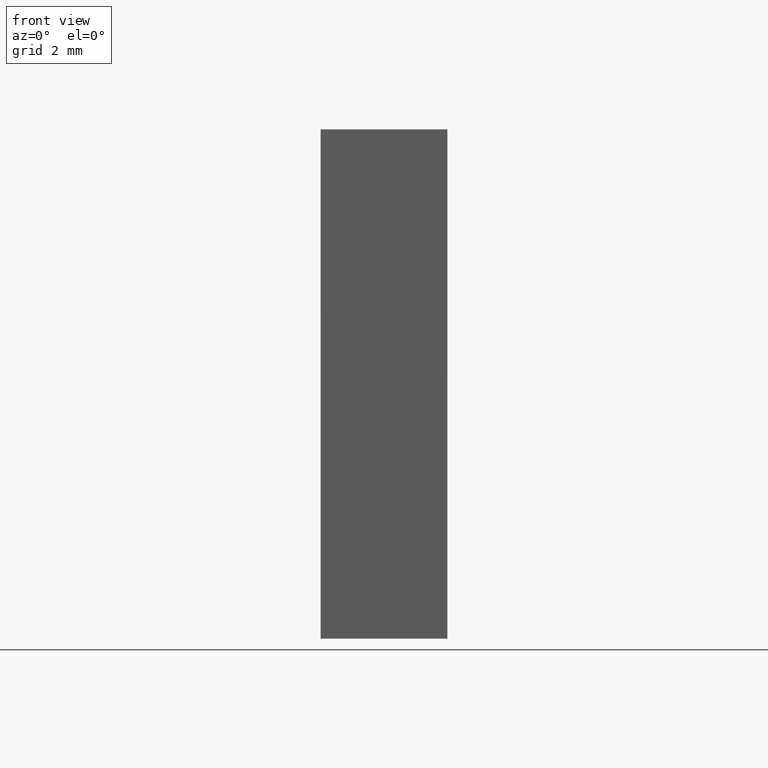
[diagram: clean part render]
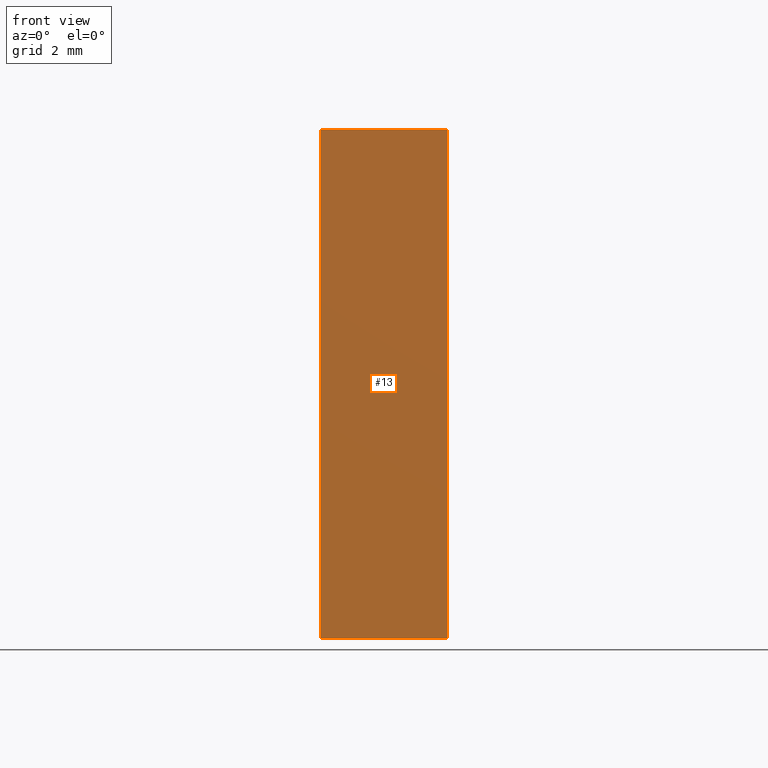
[diagram: same view with one face highlighted and labeled with its STEP entity id]
A machine part, front view. The second image highlights one B-rep face of the part: STEP entity #13.
In plain terms, the highlighted planar face has unit normal (0, 1, 0).
Its self-contained STEP definition (entity closure, byte-faithful):
#13 = ADVANCED_FACE ( 'NONE', ( #139 ), #123, .F. ) ;
#19 = CARTESIAN_POINT ( 'NONE',  ( 8.812458246586681199, -11.23237824220924530, 0.000000000000000000 ) ) ;
#21 = VECTOR ( 'NONE', #221, 1000.000000000000000 ) ;
#27 = DIRECTION ( 'NONE',  ( 0.000000000000000000, 1.000000000000000000, 0.000000000000000000 ) ) ;
#33 = LINE ( 'NONE', #19, #98 ) ;
#40 = AXIS2_PLACEMENT_3D ( 'NONE', #190, #27, #155 ) ;
#44 = ORIENTED_EDGE ( 'NONE', *, *, #78, .F. ) ;
#63 = VECTOR ( 'NONE', #79, 1000.000000000000000 ) ;
#68 = VERTEX_POINT ( 'NONE', #201 ) ;
#74 = LINE ( 'NONE', #77, #217 ) ;
#77 = CARTESIAN_POINT ( 'NONE',  ( 11.30245824658667964, -11.23237824220924530, 10.00000000000000000 ) ) ;
#78 = EDGE_CURVE ( 'NONE', #214, #191, #74, .T. ) ;
#79 = DIRECTION ( 'NONE',  ( -0.000000000000000000, -0.000000000000000000, -1.000000000000000000 ) ) ;
#88 = ORIENTED_EDGE ( 'NONE', *, *, #141, .T. ) ;
#94 = CARTESIAN_POINT ( 'NONE',  ( 8.812458246586681199, -11.23237824220924530, 10.00000000000000000 ) ) ;
#95 = DIRECTION ( 'NONE',  ( 1.000000000000000000, 0.000000000000000000, 0.000000000000000000 ) ) ;
#97 = LINE ( 'NONE', #199, #63 ) ;
#98 = VECTOR ( 'NONE', #95, 1000.000000000000000 ) ;
#99 = LINE ( 'NONE', #94, #21 ) ;
#117 = EDGE_CURVE ( 'NONE', #68, #214, #99, .T. ) ;
#123 = PLANE ( 'NONE',  #40 ) ;
#129 = CARTESIAN_POINT ( 'NONE',  ( 11.30245824658667964, -11.23237824220924530, 0.000000000000000000 ) ) ;
#138 = ORIENTED_EDGE ( 'NONE', *, *, #156, .T. ) ;
#139 = FACE_OUTER_BOUND ( 'NONE', #176, .T. ) ;
#141 = EDGE_CURVE ( 'NONE', #68, #234, #97, .T. ) ;
#145 = CARTESIAN_POINT ( 'NONE',  ( 8.812458246586681199, -11.23237824220924530, 0.000000000000000000 ) ) ;
#155 = DIRECTION ( 'NONE',  ( 0.000000000000000000, -0.000000000000000000, 1.000000000000000000 ) ) ;
#156 = EDGE_CURVE ( 'NONE', #234, #191, #33, .T. ) ;
#176 = EDGE_LOOP ( 'NONE', ( #138, #44, #210, #88 ) ) ;
#190 = CARTESIAN_POINT ( 'NONE',  ( 8.812458246586681199, -11.23237824220924530, 10.00000000000000000 ) ) ;
#191 = VERTEX_POINT ( 'NONE', #129 ) ;
#196 = DIRECTION ( 'NONE',  ( -0.000000000000000000, -0.000000000000000000, -1.000000000000000000 ) ) ;
#199 = CARTESIAN_POINT ( 'NONE',  ( 8.812458246586681199, -11.23237824220924530, 10.00000000000000000 ) ) ;
#201 = CARTESIAN_POINT ( 'NONE',  ( 8.812458246586681199, -11.23237824220924530, 10.00000000000000000 ) ) ;
#210 = ORIENTED_EDGE ( 'NONE', *, *, #117, .F. ) ;
#214 = VERTEX_POINT ( 'NONE', #216 ) ;
#216 = CARTESIAN_POINT ( 'NONE',  ( 11.30245824658667964, -11.23237824220924530, 10.00000000000000000 ) ) ;
#217 = VECTOR ( 'NONE', #196, 1000.000000000000000 ) ;
#221 = DIRECTION ( 'NONE',  ( 1.000000000000000000, 0.000000000000000000, 0.000000000000000000 ) ) ;
#234 = VERTEX_POINT ( 'NONE', #145 ) ;